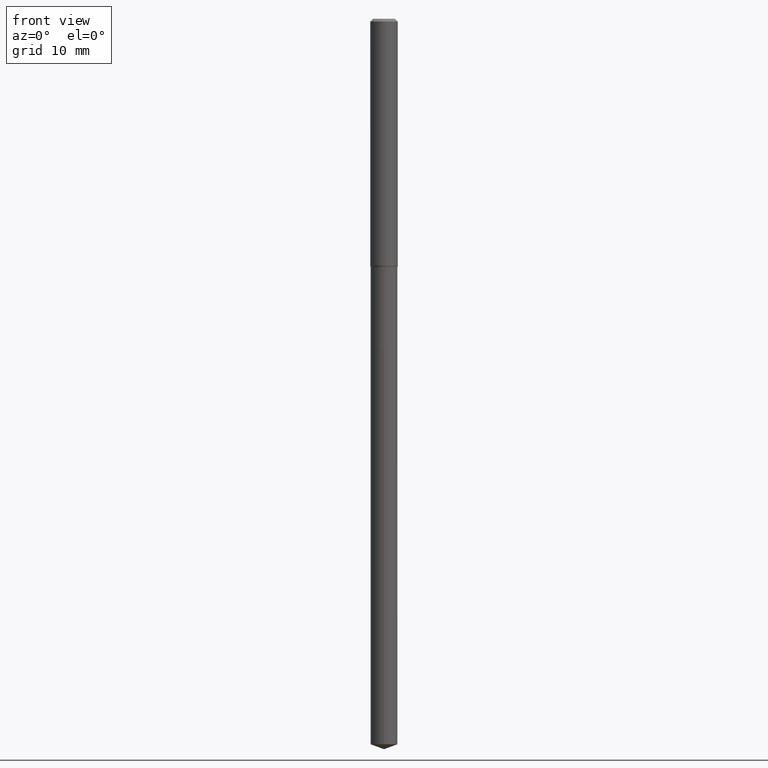
[diagram: clean part render]
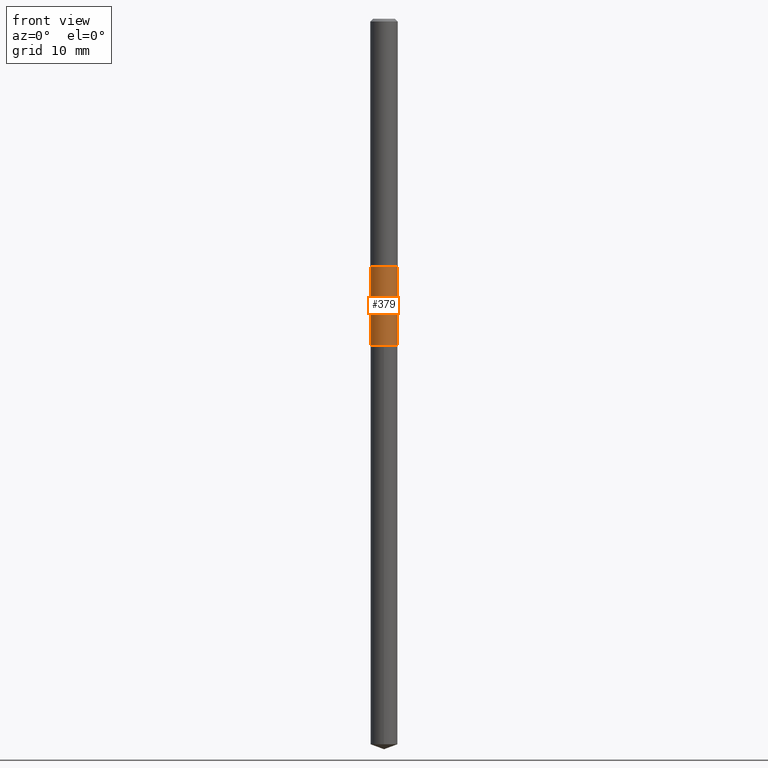
[diagram: same view with one face highlighted and labeled with its STEP entity id]
A machine part, front view. The second image highlights one B-rep face of the part: STEP entity #379.
In plain terms, the highlighted cylindrical surface (edge-blend (fillet) strip) has radius 1.9494 mm, axis along (-0, 0, 1).
Its self-contained STEP definition (entity closure, byte-faithful):
#3 = DIRECTION ( 'NONE',  ( -2.445468806185136597E-29, 3.491481338843145583E-15, 1.000000000000000000 ) ) ;
#49 = CYLINDRICAL_SURFACE ( 'NONE', #263, 0.07674999999999997102 ) ;
#51 = VERTEX_POINT ( 'NONE', #346 ) ;
#61 = CARTESIAN_POINT ( 'NONE',  ( 3.467430220289904224E-29, -4.950571390345695458E-15, -1.417899999999999716 ) ) ;
#68 = CIRCLE ( 'NONE', #139, 0.07674999999999994327 ) ;
#71 = EDGE_CURVE ( 'NONE', #51, #421, #327, .T. ) ;
#74 = ORIENTED_EDGE ( 'NONE', *, *, #304, .T. ) ;
#79 = CARTESIAN_POINT ( 'NONE',  ( 0.07674999999999994327, -5.486513775858115986E-15, -1.417899999999999716 ) ) ;
#87 = VERTEX_POINT ( 'NONE', #79 ) ;
#96 = VECTOR ( 'NONE', #190, 39.37007874015748143 ) ;
#97 = EDGE_CURVE ( 'NONE', #183, #87, #144, .T. ) ;
#106 = CARTESIAN_POINT ( 'NONE',  ( 0.07675000000000001266, -7.049649971258191813E-15, -1.865599999999999259 ) ) ;
#139 = AXIS2_PLACEMENT_3D ( 'NONE', #61, #438, #467 ) ;
#144 = LINE ( 'NONE', #185, #96 ) ;
#179 = CARTESIAN_POINT ( 'NONE',  ( -0.07674999999999997102, 5.453415496958766868E-16, -3.775282681770638931E-30 ) ) ;
#183 = VERTEX_POINT ( 'NONE', #106 ) ;
#185 = CARTESIAN_POINT ( 'NONE',  ( 0.07674999999999997102, -5.359423855124207255E-16, 3.742465675423379404E-30 ) ) ;
#190 = DIRECTION ( 'NONE',  ( -2.445468806185136877E-29, 3.491481338843145188E-15, 1.000000000000000000 ) ) ;
#195 = CARTESIAN_POINT ( 'NONE',  ( 0.000000000000000000, 0.000000000000000000, 0.000000000000000000 ) ) ;
#202 = CARTESIAN_POINT ( 'NONE',  ( 4.562266604818988918E-29, -6.513707585745769707E-15, -1.865599999999999259 ) ) ;
#236 = AXIS2_PLACEMENT_3D ( 'NONE', #202, #3, #310 ) ;
#263 = AXIS2_PLACEMENT_3D ( 'NONE', #195, #381, #306 ) ;
#292 = ORIENTED_EDGE ( 'NONE', *, *, #97, .T. ) ;
#304 = EDGE_CURVE ( 'NONE', #51, #183, #312, .T. ) ;
#306 = DIRECTION ( 'NONE',  ( 1.000000000000000000, -6.982962677686265922E-15, 4.876176775795935793E-29 ) ) ;
#310 = DIRECTION ( 'NONE',  ( 1.000000000000000000, -6.982962677686271444E-15, 0.000000000000000000 ) ) ;
#312 = CIRCLE ( 'NONE', #236, 0.07675000000000001266 ) ;
#327 = LINE ( 'NONE', #179, #485 ) ;
#346 = CARTESIAN_POINT ( 'NONE',  ( -0.07675000000000001266, -5.186797938349855402E-15, -1.865599999999999259 ) ) ;
#354 = CARTESIAN_POINT ( 'NONE',  ( -0.07674999999999994327, -5.186797938349855402E-15, -1.417899999999999716 ) ) ;
#357 = ORIENTED_EDGE ( 'NONE', *, *, #471, .F. ) ;
#379 = ADVANCED_FACE ( 'NONE', ( #380 ), #49, .T. ) ;
#380 = FACE_OUTER_BOUND ( 'NONE', #432, .T. ) ;
#381 = DIRECTION ( 'NONE',  ( -2.445468806185136597E-29, 3.491481338843145583E-15, 1.000000000000000000 ) ) ;
#421 = VERTEX_POINT ( 'NONE', #354 ) ;
#432 = EDGE_LOOP ( 'NONE', ( #483, #74, #292, #357 ) ) ;
#435 = DIRECTION ( 'NONE',  ( -2.445468806185136877E-29, 3.491481338843145188E-15, 1.000000000000000000 ) ) ;
#438 = DIRECTION ( 'NONE',  ( -2.445468806185136597E-29, 3.491481338843145583E-15, 1.000000000000000000 ) ) ;
#467 = DIRECTION ( 'NONE',  ( 1.000000000000000000, -6.982962677686265133E-15, 0.000000000000000000 ) ) ;
#471 = EDGE_CURVE ( 'NONE', #421, #87, #68, .T. ) ;
#483 = ORIENTED_EDGE ( 'NONE', *, *, #71, .F. ) ;
#485 = VECTOR ( 'NONE', #435, 39.37007874015748143 ) ;